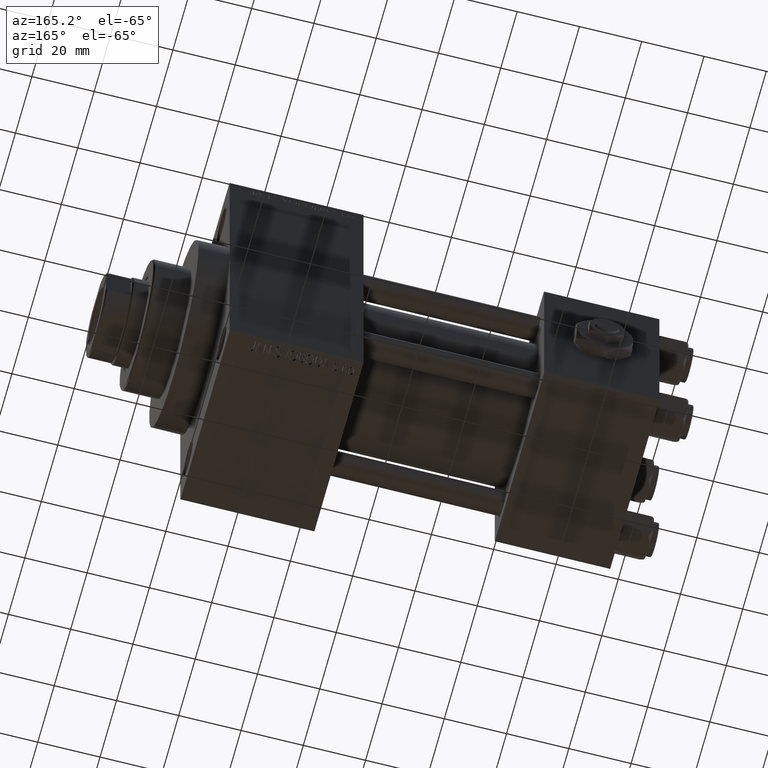
[diagram: clean part render]
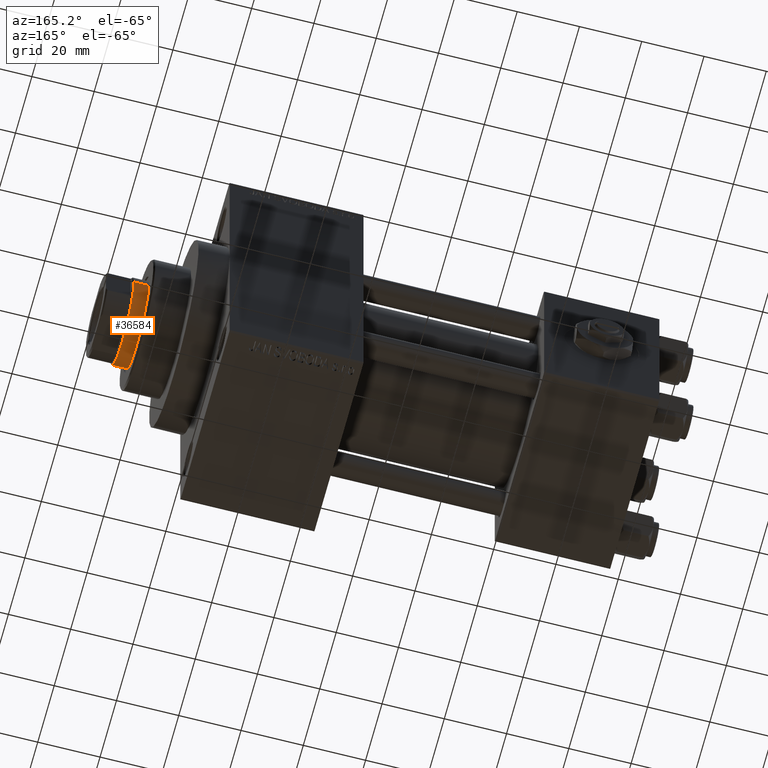
[diagram: same view with one face highlighted and labeled with its STEP entity id]
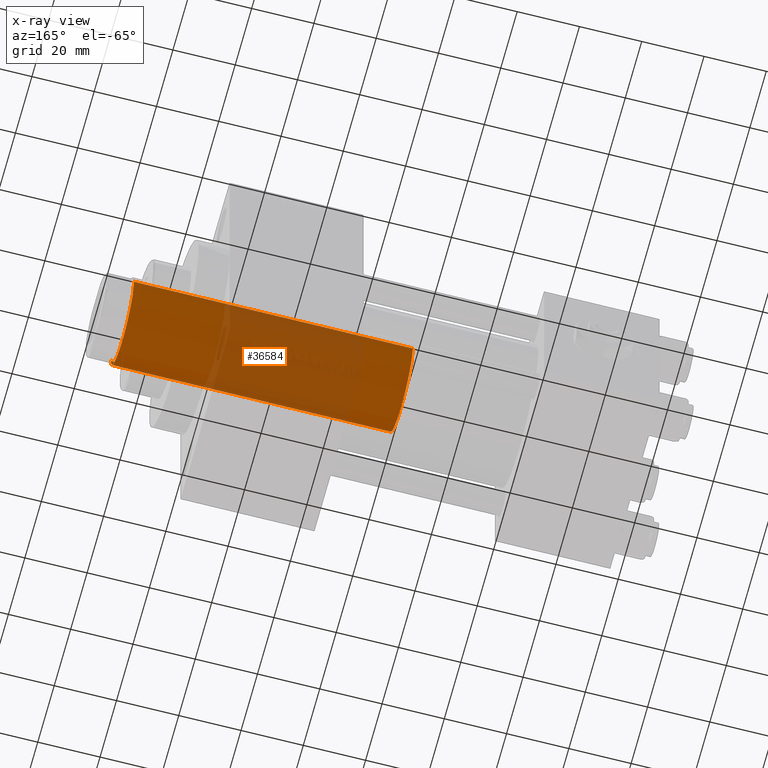
[diagram: x-ray of the same camera — body ghosted, the highlighted face saturated]
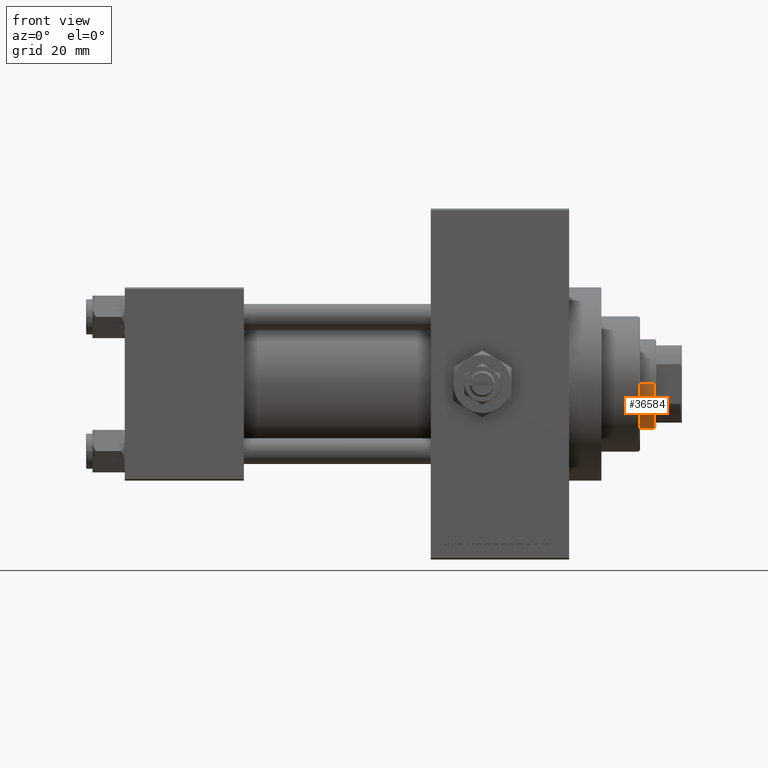
[diagram: same view with one face highlighted and labeled with its STEP entity id]
A machine part, auxiliary view. The second image highlights one B-rep face of the part: STEP entity #36584.
The next image is the same camera in x-ray: the body ghosted, the highlighted face saturated — about 51% of this face is hidden behind the body in this view.
A second angle (front view) of the same face is appended — the face is thin or edge-on in the first view.
In plain terms, the highlighted cylindrical surface (partial cylindrical patch) has radius 14 mm, axis along (-1, 0, 0).
Its self-contained STEP definition (entity closure, byte-faithful):
#439 = AXIS2_PLACEMENT_3D ( 'NONE', #29362, #22191, #37722 ) ;
#7113 = CARTESIAN_POINT ( 'NONE',  ( 14.00000000000000178, 1.714505518806294441E-15, 128.0000000000000000 ) ) ;
#9804 = VECTOR ( 'NONE', #34275, 1000.000000000000000 ) ;
#10433 = EDGE_CURVE ( 'NONE', #35005, #34578, #39200, .T. ) ;
#15492 = EDGE_CURVE ( 'NONE', #45236, #34578, #16929, .T. ) ;
#16516 = CARTESIAN_POINT ( 'NONE',  ( -14.00000000000000178, 0.000000000000000000, 128.0000000000000000 ) ) ;
#16929 = CIRCLE ( 'NONE', #439, 14.00000000000000178 ) ;
#18155 = CARTESIAN_POINT ( 'NONE',  ( 14.00000000000000178, 1.714505518806294441E-15, 127.5000000000000853 ) ) ;
#19189 = CARTESIAN_POINT ( 'NONE',  ( -14.00000000000000178, 0.000000000000000000, 38.00000000000000000 ) ) ;
#22191 = DIRECTION ( 'NONE',  ( 0.000000000000000000, 0.000000000000000000, 1.000000000000000000 ) ) ;
#25921 = CARTESIAN_POINT ( 'NONE',  ( 0.000000000000000000, 0.000000000000000000, 127.5000000000000853 ) ) ;
#27073 = DIRECTION ( 'NONE',  ( 0.000000000000000000, 0.000000000000000000, -1.000000000000000000 ) ) ;
#29362 = CARTESIAN_POINT ( 'NONE',  ( 0.000000000000000000, 0.000000000000000000, 38.00000000000000000 ) ) ;
#30103 = DIRECTION ( 'NONE',  ( -0.000000000000000000, -0.000000000000000000, -1.000000000000000000 ) ) ;
#30365 = CARTESIAN_POINT ( 'NONE',  ( -14.00000000000000178, 0.000000000000000000, 127.5000000000000853 ) ) ;
#30953 = ORIENTED_EDGE ( 'NONE', *, *, #10433, .F. ) ;
#31435 = EDGE_LOOP ( 'NONE', ( #47999, #45621, #45787, #30953 ) ) ;
#33008 = LINE ( 'NONE', #7113, #36125 ) ;
#33324 = DIRECTION ( 'NONE',  ( 1.000000000000000000, 0.000000000000000000, 0.000000000000000000 ) ) ;
#33764 = CIRCLE ( 'NONE', #40068, 14.00000000000000178 ) ;
#34045 = DIRECTION ( 'NONE',  ( -1.000000000000000000, 0.000000000000000000, 0.000000000000000000 ) ) ;
#34275 = DIRECTION ( 'NONE',  ( -0.000000000000000000, -0.000000000000000000, -1.000000000000000000 ) ) ;
#34578 = VERTEX_POINT ( 'NONE', #19189 ) ;
#35005 = VERTEX_POINT ( 'NONE', #30365 ) ;
#36125 = VECTOR ( 'NONE', #37181, 1000.000000000000000 ) ;
#36584 = ADVANCED_FACE ( 'NONE', ( #38214 ), #41425, .T. ) ;
#37181 = DIRECTION ( 'NONE',  ( -0.000000000000000000, -0.000000000000000000, -1.000000000000000000 ) ) ;
#37722 = DIRECTION ( 'NONE',  ( 1.000000000000000000, 0.000000000000000000, 0.000000000000000000 ) ) ;
#38214 = FACE_OUTER_BOUND ( 'NONE', #31435, .T. ) ;
#39200 = LINE ( 'NONE', #16516, #9804 ) ;
#40068 = AXIS2_PLACEMENT_3D ( 'NONE', #25921, #27073, #33324 ) ;
#40683 = AXIS2_PLACEMENT_3D ( 'NONE', #41907, #30103, #34045 ) ;
#40906 = EDGE_CURVE ( 'NONE', #35005, #42625, #33764, .T. ) ;
#41425 = CYLINDRICAL_SURFACE ( 'NONE', #40683, 14.00000000000000178 ) ;
#41450 = EDGE_CURVE ( 'NONE', #42625, #45236, #33008, .T. ) ;
#41907 = CARTESIAN_POINT ( 'NONE',  ( 0.000000000000000000, 0.000000000000000000, 128.0000000000000000 ) ) ;
#42065 = CARTESIAN_POINT ( 'NONE',  ( 14.00000000000000178, 1.714505518806294441E-15, 38.00000000000000000 ) ) ;
#42625 = VERTEX_POINT ( 'NONE', #18155 ) ;
#45236 = VERTEX_POINT ( 'NONE', #42065 ) ;
#45621 = ORIENTED_EDGE ( 'NONE', *, *, #41450, .T. ) ;
#45787 = ORIENTED_EDGE ( 'NONE', *, *, #15492, .T. ) ;
#47999 = ORIENTED_EDGE ( 'NONE', *, *, #40906, .T. ) ;